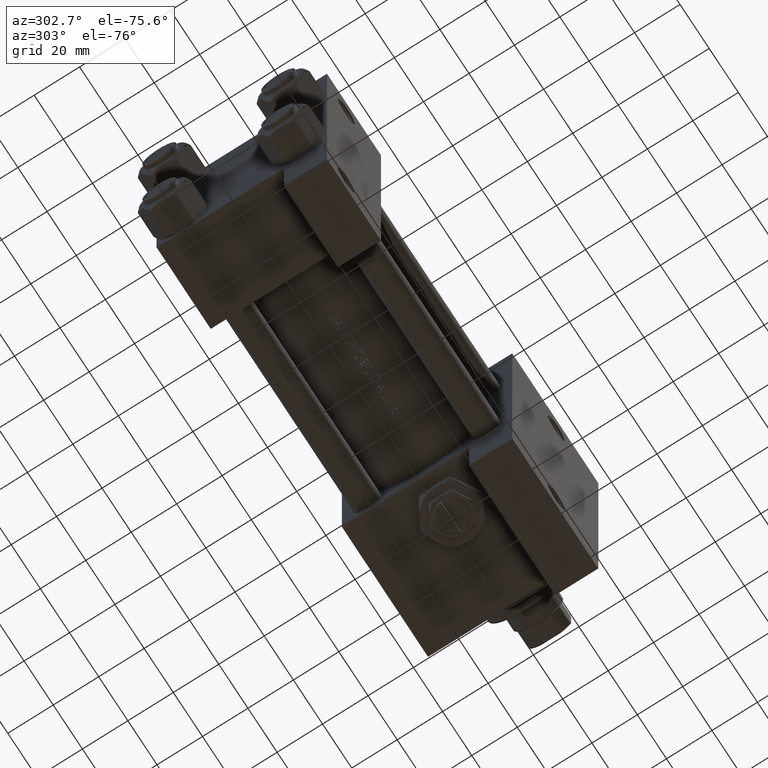
[diagram: clean part render]
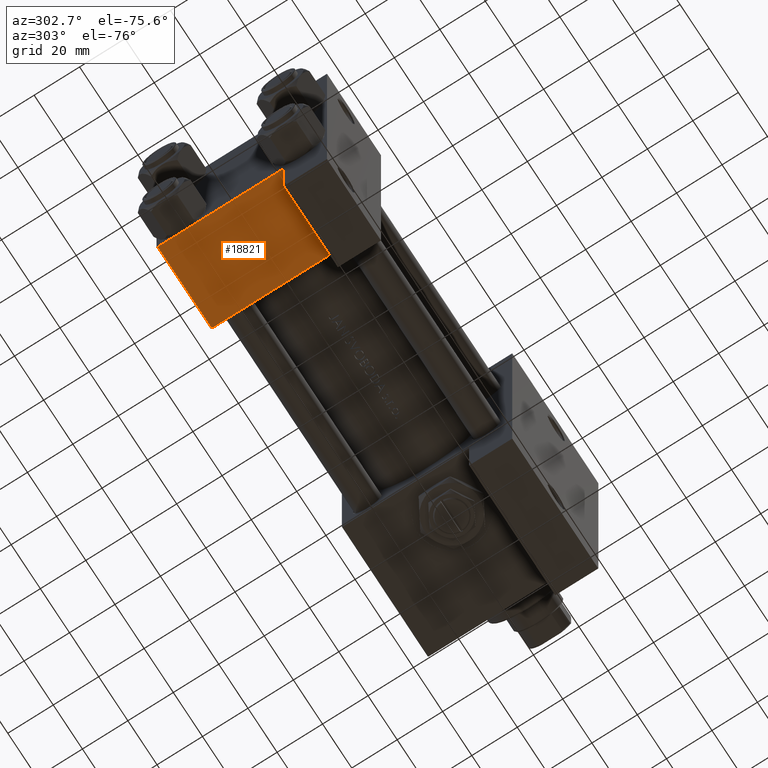
[diagram: same view with one face highlighted and labeled with its STEP entity id]
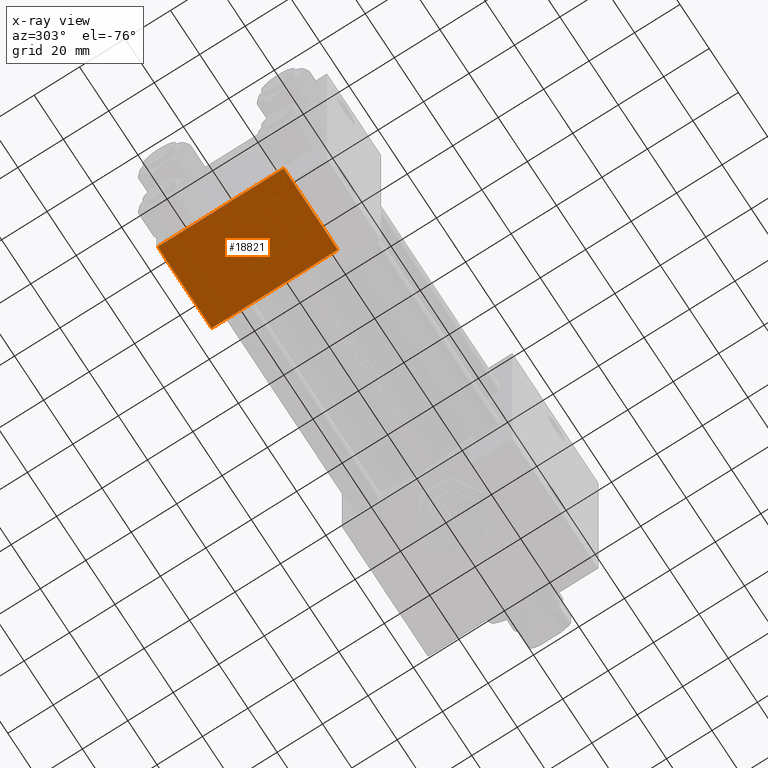
[diagram: x-ray of the same camera — body ghosted, the highlighted face saturated]
A machine part, auxiliary view. The second image highlights one B-rep face of the part: STEP entity #18821.
The next image is the same camera in x-ray: the body ghosted, the highlighted face saturated — about 0% of this face is hidden behind the body in this view.
In plain terms, the highlighted planar face has unit normal (0, 0, -1).
Its self-contained STEP definition (entity closure, byte-faithful):
#578 = EDGE_CURVE ( 'NONE', #20344, #24571, #16241, .T. ) ;
#1387 = ORIENTED_EDGE ( 'NONE', *, *, #578, .F. ) ;
#1537 = DIRECTION ( 'NONE',  ( 1.000000000000000000, -3.750753461571474945E-16, 0.000000000000000000 ) ) ;
#1542 = VERTEX_POINT ( 'NONE', #2728 ) ;
#2728 = CARTESIAN_POINT ( 'NONE',  ( 37.00000000000000000, 37.49999999999999289, 37.00000000000000000 ) ) ;
#3108 = VERTEX_POINT ( 'NONE', #36598 ) ;
#3809 = FACE_OUTER_BOUND ( 'NONE', #24856, .T. ) ;
#5880 = CARTESIAN_POINT ( 'NONE',  ( 37.00000000000000000, 37.49999999999999289, 37.50000000000000000 ) ) ;
#9854 = PLANE ( 'NONE',  #30759 ) ;
#10129 = VECTOR ( 'NONE', #41298, 1000.000000000000000 ) ;
#10697 = LINE ( 'NONE', #26108, #10129 ) ;
#11924 = CARTESIAN_POINT ( 'NONE',  ( 0.000000000000000000, 37.49999999999999289, 37.50000000000000000 ) ) ;
#14116 = VECTOR ( 'NONE', #38011, 1000.000000000000000 ) ;
#15177 = DIRECTION ( 'NONE',  ( 0.000000000000000000, 0.000000000000000000, -1.000000000000000000 ) ) ;
#16241 = LINE ( 'NONE', #28153, #22526 ) ;
#18547 = EDGE_CURVE ( 'NONE', #3108, #1542, #19101, .T. ) ;
#18821 = ADVANCED_FACE ( 'NONE', ( #3809 ), #9854, .T. ) ;
#19101 = LINE ( 'NONE', #38249, #14116 ) ;
#19259 = ORIENTED_EDGE ( 'NONE', *, *, #18547, .T. ) ;
#20344 = VERTEX_POINT ( 'NONE', #42626 ) ;
#22526 = VECTOR ( 'NONE', #1537, 1000.000000000000000 ) ;
#23529 = ORIENTED_EDGE ( 'NONE', *, *, #30058, .F. ) ;
#24571 = VERTEX_POINT ( 'NONE', #29888 ) ;
#24856 = EDGE_LOOP ( 'NONE', ( #1387, #23529, #19259, #45234 ) ) ;
#26108 = CARTESIAN_POINT ( 'NONE',  ( 37.00000000000000000, 37.49999999999999289, 37.50000000000000000 ) ) ;
#28153 = CARTESIAN_POINT ( 'NONE',  ( 8.470280871287256020E-15, 37.50000000000002842, -18.49999999999999645 ) ) ;
#29888 = CARTESIAN_POINT ( 'NONE',  ( 37.00000000000000711, 37.50000000000000711, -18.50000000000000355 ) ) ;
#30058 = EDGE_CURVE ( 'NONE', #3108, #20344, #30789, .T. ) ;
#30759 = AXIS2_PLACEMENT_3D ( 'NONE', #5880, #32962, #36703 ) ;
#30789 = LINE ( 'NONE', #11924, #36062 ) ;
#32962 = DIRECTION ( 'NONE',  ( -0.000000000000000000, 1.000000000000000000, 0.000000000000000000 ) ) ;
#36062 = VECTOR ( 'NONE', #15177, 1000.000000000000000 ) ;
#36598 = CARTESIAN_POINT ( 'NONE',  ( 0.000000000000000000, 37.49999999999999289, 37.00000000000000000 ) ) ;
#36703 = DIRECTION ( 'NONE',  ( 0.000000000000000000, -0.000000000000000000, 1.000000000000000000 ) ) ;
#38011 = DIRECTION ( 'NONE',  ( 1.000000000000000000, 0.000000000000000000, 0.000000000000000000 ) ) ;
#38249 = CARTESIAN_POINT ( 'NONE',  ( 37.00000000000000000, 37.49999999999999289, 37.00000000000000000 ) ) ;
#39629 = EDGE_CURVE ( 'NONE', #1542, #24571, #10697, .T. ) ;
#41298 = DIRECTION ( 'NONE',  ( 0.000000000000000000, 0.000000000000000000, -1.000000000000000000 ) ) ;
#42626 = CARTESIAN_POINT ( 'NONE',  ( 0.000000000000000000, 37.49999999999999289, -18.49999999999999645 ) ) ;
#45234 = ORIENTED_EDGE ( 'NONE', *, *, #39629, .T. ) ;